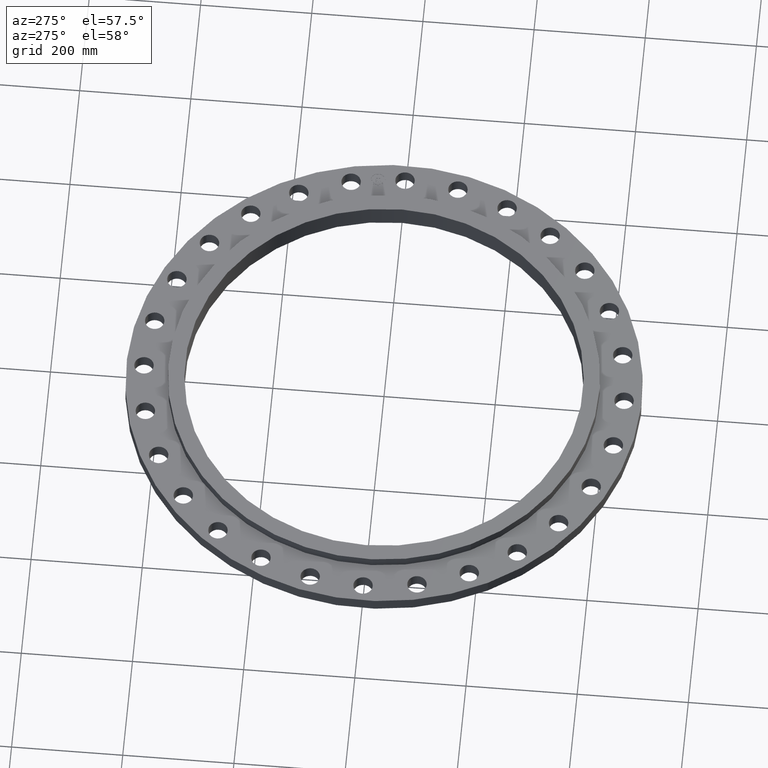
[diagram: clean part render]
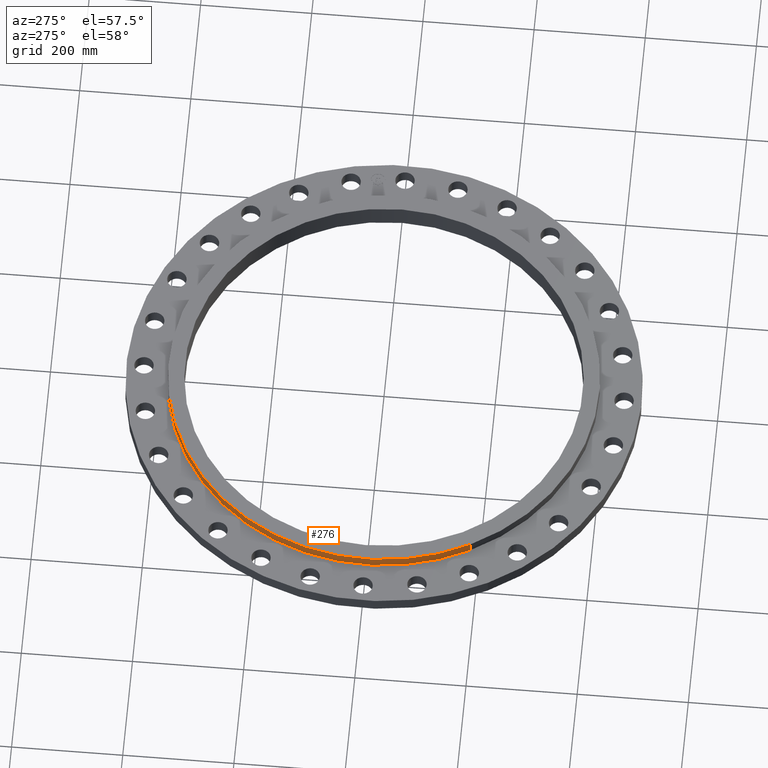
[diagram: same view with one face highlighted and labeled with its STEP entity id]
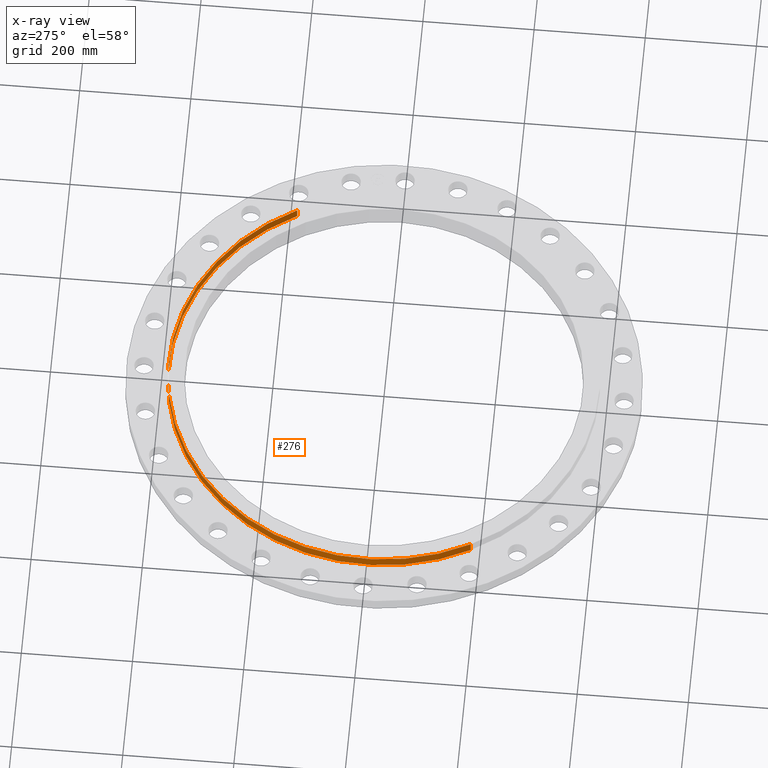
[diagram: x-ray of the same camera — body ghosted, the highlighted face saturated]
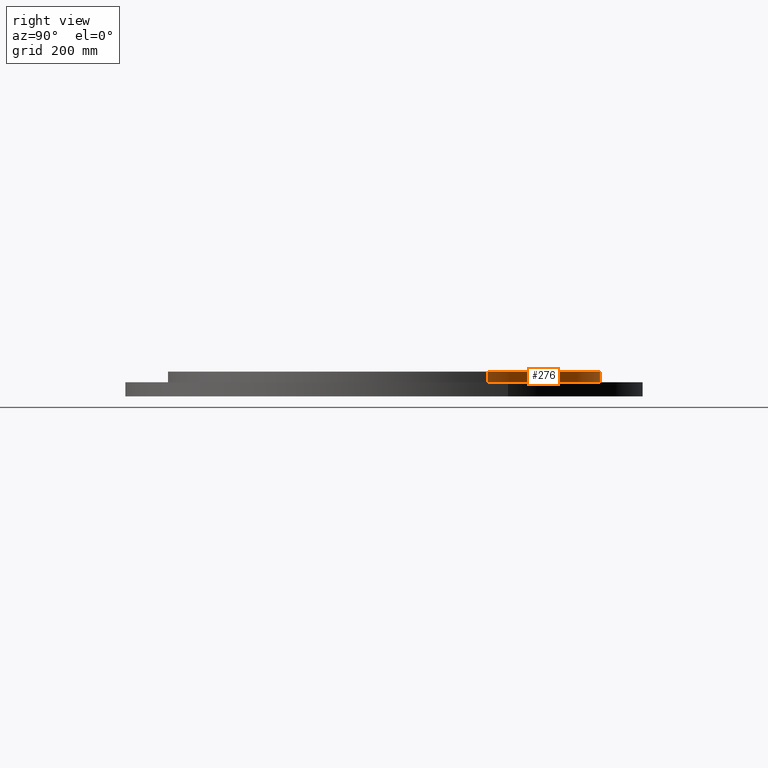
[diagram: same view with one face highlighted and labeled with its STEP entity id]
A machine part, auxiliary view. The second image highlights one B-rep face of the part: STEP entity #276.
The next image is the same camera in x-ray: the body ghosted, the highlighted face saturated — about 0% of this face is hidden behind the body in this view.
A second angle (right view) of the same face is appended — the face is thin or edge-on in the first view.
In plain terms, the highlighted cylindrical surface (partial cylindrical patch) has radius 387.35 mm, axis along (0, 0, 1).
Its self-contained STEP definition (entity closure, byte-faithful):
#222=AXIS2_PLACEMENT_3D('Circle Axis2P3D',#220,#221,$) ;
#237=AXIS2_PLACEMENT_3D('Cylinder Axis2P3D',#234,#235,#236) ;
#267=AXIS2_PLACEMENT_3D('Circle Axis2P3D',#265,#266,$) ;
#215=CARTESIAN_POINT('Vertex',(-13.3831340689,-7.31123946374,1.75000000001)) ;
#217=CARTESIAN_POINT('Vertex',(13.3831340689,7.31123946374,1.75000000001)) ;
#220=CARTESIAN_POINT('Axis2P3D Location',(0.,0.,1.75000000001)) ;
#234=CARTESIAN_POINT('Axis2P3D Location',(0.,0.,0.875000000004)) ;
#239=CARTESIAN_POINT('Line Origine',(13.3831340689,7.31123946374,1.37500000001)) ;
#243=CARTESIAN_POINT('Vertex',(13.3831340689,7.31123946374,1.)) ;
#246=CARTESIAN_POINT('Line Origine',(-13.3831340689,-7.31123946374,1.37500000001)) ;
#250=CARTESIAN_POINT('Vertex',(-13.3831340689,-7.31123946374,1.)) ;
#265=CARTESIAN_POINT('Axis2P3D Location',(0.,0.,1.)) ;
#221=DIRECTION('Axis2P3D Direction',(0.,0.,0.0393700787402)) ;
#235=DIRECTION('Axis2P3D Direction',(0.,0.,0.0393700787402)) ;
#236=DIRECTION('Axis2P3D XDirection',(0.0345504945626,0.0188750212049,0.)) ;
#240=DIRECTION('Vector Direction',(0.,0.,0.0393700787402)) ;
#247=DIRECTION('Vector Direction',(0.,0.,0.0393700787402)) ;
#266=DIRECTION('Axis2P3D Direction',(0.,0.,0.0393700787402)) ;
#241=VECTOR('Line Direction',#240,0.0393700787402) ;
#248=VECTOR('Line Direction',#247,0.0393700787402) ;
#271=ORIENTED_EDGE('',*,*,#252,.T.) ;
#272=ORIENTED_EDGE('',*,*,#224,.F.) ;
#273=ORIENTED_EDGE('',*,*,#245,.F.) ;
#274=ORIENTED_EDGE('',*,*,#269,.T.) ;
#276=ADVANCED_FACE('PartBody',(#275),#238,.T.) ;
#223=CIRCLE('generated circle',#222,15.2500000001) ;
#268=CIRCLE('generated circle',#267,15.2500000001) ;
#238=CYLINDRICAL_SURFACE('generated cylinder',#237,15.2500000001) ;
#224=EDGE_CURVE('',#218,#216,#223,.T.) ;
#245=EDGE_CURVE('',#244,#218,#242,.T.) ;
#252=EDGE_CURVE('',#251,#216,#249,.T.) ;
#269=EDGE_CURVE('',#244,#251,#268,.T.) ;
#270=EDGE_LOOP('',(#271,#272,#273,#274)) ;
#275=FACE_OUTER_BOUND('',#270,.T.) ;
#242=LINE('Line',#239,#241) ;
#249=LINE('Line',#246,#248) ;
#216=VERTEX_POINT('',#215) ;
#218=VERTEX_POINT('',#217) ;
#244=VERTEX_POINT('',#243) ;
#251=VERTEX_POINT('',#250) ;